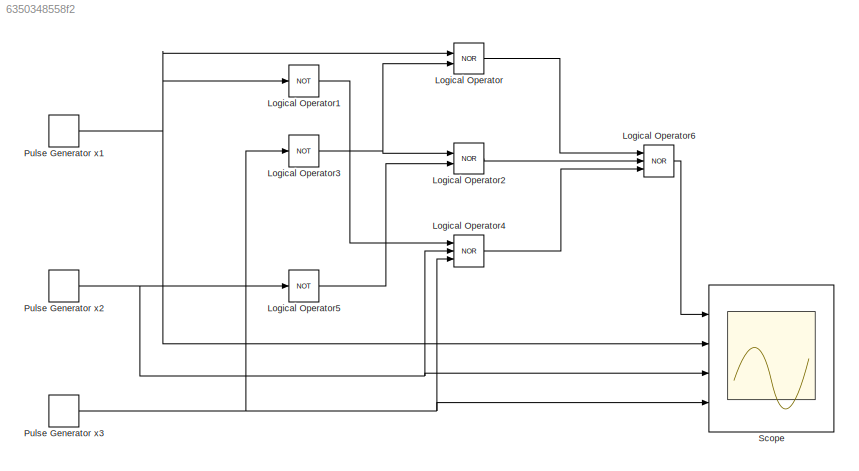
MODEL slx_6350348558f2
KIND model
CONFIG AbsTol = auto
CONFIG EnableMultiTasking = off
CONFIG FixedStep = auto
CONFIG MaxStep = auto
CONFIG MinStep = auto
CONFIG RelTol = 1e-3
CONFIG SampleTimeConstraint = Unconstrained
CONFIG Solver = VariableStepAuto
CONFIG SolverName = VariableStepAuto
CONFIG StartTime = 0.0
CONFIG StopTime = 10.0
BLOCK [Logic] Logical Operator
  AllPortsSameDT = off
  Operator = NOR
  OutDataTypeStr = boolean
  Ports = [2, 1]
BLOCK [Logic] Logical Operator1
  AllPortsSameDT = off
  Operator = NOT
  OutDataTypeStr = boolean
  Ports = [1, 1]
BLOCK [Logic] Logical Operator2
  AllPortsSameDT = off
  Operator = NOR
  OutDataTypeStr = boolean
  Ports = [2, 1]
BLOCK [Logic] Logical Operator3
  AllPortsSameDT = off
  Operator = NOT
  OutDataTypeStr = boolean
  Ports = [1, 1]
BLOCK [Logic] Logical Operator4
  AllPortsSameDT = off
  Inputs = 3
  Operator = NOR
  OutDataTypeStr = boolean
  Ports = [3, 1]
BLOCK [Logic] Logical Operator5
  AllPortsSameDT = off
  Operator = NOT
  OutDataTypeStr = boolean
  Ports = [1, 1]
BLOCK [Logic] Logical Operator6
  AllPortsSameDT = off
  Inputs = 3
  Operator = NOR
  OutDataTypeStr = boolean
  Ports = [3, 1]
BLOCK [DiscretePulseGenerator] Pulse Generator x1
  Ports = [0, 1]
  PulseType = Time based
  PulseWidth = 50
BLOCK [DiscretePulseGenerator] Pulse Generator x2
  Period = 4
  Ports = [0, 1]
  PulseType = Time based
  PulseWidth = 50
BLOCK [DiscretePulseGenerator] Pulse Generator x3
  Period = 8
  Ports = [0, 1]
  PulseType = Time based
  PulseWidth = 50
BLOCK [Scope] Scope
  NumInputPorts = 4
  Ports = [4]
  ScopeSpecificationString = Simulink.scopes.TimeScopeBlockCfg('CurrentConfiguration', extmgr.ConfigurationSet(extmgr.Configuration('Core','General UI',true),extmgr.Configuration('Core','Source UI',true),extmgr.Configuration('Sources','WiredSimulink',true),extmgr.Configuration('Visuals','Time Domain',true,'SerializedDisplays',{struct('MinYLimReal','-1','MaxYLimReal','2','YLabelReal','','MinYLimMag','0.9','MaxYLimMag','1.1','L...<+3291ch>
LINE Logical Operator1:1 -> Logical Operator4:1
LINE Logical Operator2:1 -> Logical Operator6:2
NET Logical Operator3:1 -> Logical Operator2:1, Logical Operator:2
LINE Logical Operator4:1 -> Logical Operator6:3
LINE Logical Operator5:1 -> Logical Operator2:2
LINE Logical Operator6:1 -> Scope:1
LINE Logical Operator:1 -> Logical Operator6:1
NET Pulse Generator x1:1 -> Logical Operator1:1, Logical Operator:1, Scope:2
NET Pulse Generator x2:1 -> Logical Operator4:2, Logical Operator5:1, Scope:3
NET Pulse Generator x3:1 -> Logical Operator3:1, Logical Operator4:3, Scope:4
note: NET lines group one-source signal fan-out (src -> all destinations, sorted); 1:1 wires keep LINE
